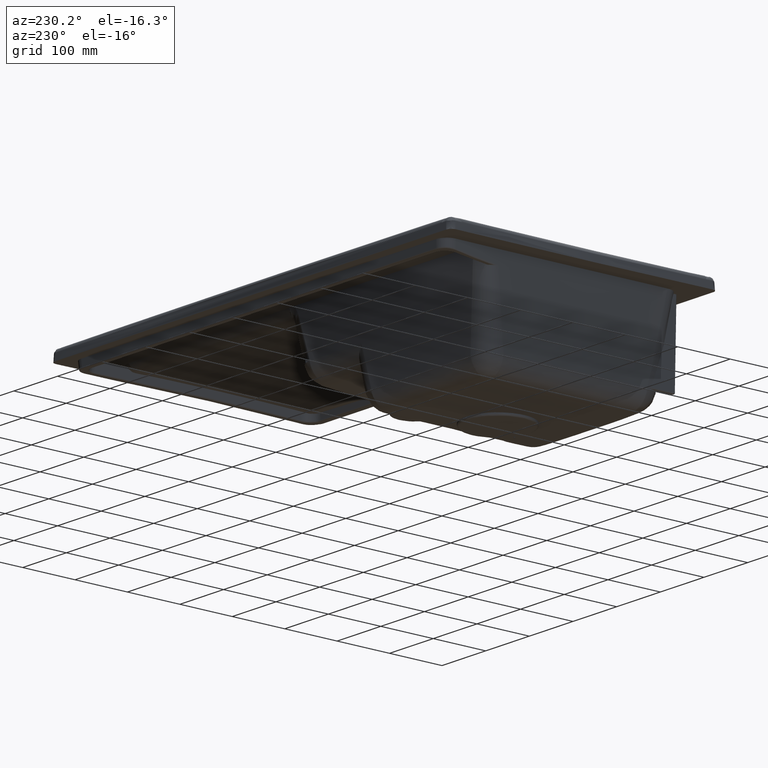
[diagram: clean part render]
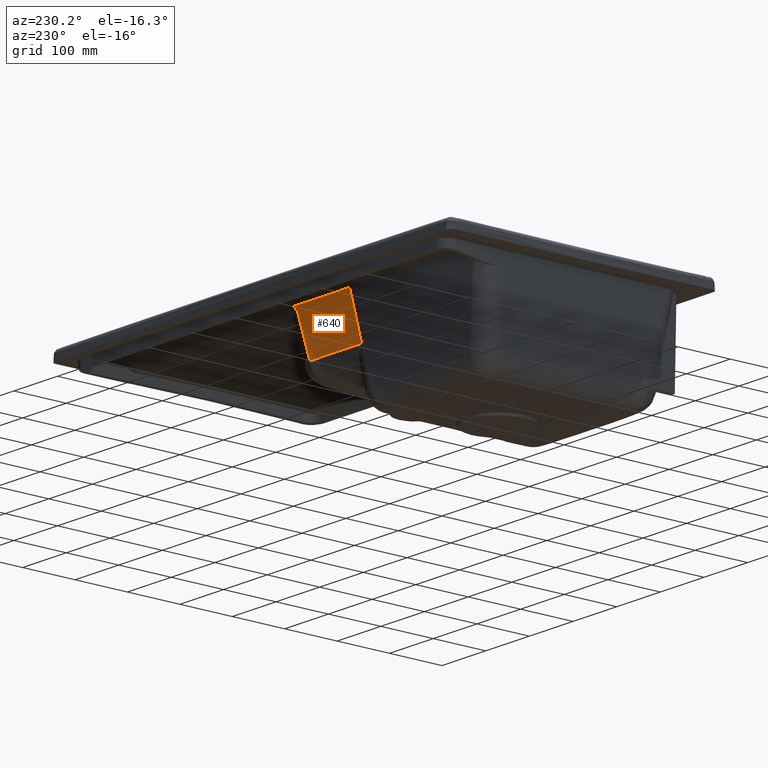
[diagram: same view with one face highlighted and labeled with its STEP entity id]
A machine part, auxiliary view. The second image highlights one B-rep face of the part: STEP entity #640.
In plain terms, the highlighted face is a freeform B-spline surface patch.
Its self-contained STEP definition (entity closure, byte-faithful):
#640=ADVANCED_FACE('',(#1094),#826,.T.);
#826=B_SPLINE_SURFACE_WITH_KNOTS('',3,3,((#17877,#17878,#17879,#17880),
(#17881,#17882,#17883,#17884),(#17885,#17886,#17887,#17888),(#17889,#17890,
#17891,#17892)),.UNSPECIFIED.,.F.,.F.,.F.,(4,4),(4,4),(0.,1.),(0.,1.),
 .UNSPECIFIED.);
#1094=FACE_OUTER_BOUND('',#1419,.T.);
#1419=EDGE_LOOP('',(#2473,#2474,#2475,#2476,#2477));
#2473=ORIENTED_EDGE('',*,*,#4084,.F.);
#2474=ORIENTED_EDGE('',*,*,#4045,.F.);
#2475=ORIENTED_EDGE('',*,*,#4087,.T.);
#2476=ORIENTED_EDGE('',*,*,#4088,.T.);
#2477=ORIENTED_EDGE('',*,*,#4089,.T.);
#3388=VERTEX_POINT('',#16092);
#3390=VERTEX_POINT('',#16109);
#3395=VERTEX_POINT('',#16238);
#3418=VERTEX_POINT('',#17747);
#3420=VERTEX_POINT('',#17872);
#4045=EDGE_CURVE('',#3390,#3388,#4671,.T.);
#4084=EDGE_CURVE('',#3388,#3418,#4700,.T.);
#4087=EDGE_CURVE('',#3390,#3395,#4703,.T.);
#4088=EDGE_CURVE('',#3395,#3420,#4704,.T.);
#4089=EDGE_CURVE('',#3420,#3418,#4705,.T.);
#4671=B_SPLINE_CURVE_WITH_KNOTS('',3,(#16110,#16111,#16112,#16113,#16114,
#16115,#16116),.UNSPECIFIED.,.F.,.F.,(4,1,1,1,4),(0.,0.191873567390972,
0.383747134781944,0.767494269563888,1.),.UNSPECIFIED.);
#4700=B_SPLINE_CURVE_WITH_KNOTS('',3,(#17743,#17744,#17745,#17746),
 .UNSPECIFIED.,.F.,.F.,(4,4),(0.,1.),.UNSPECIFIED.);
#4703=B_SPLINE_CURVE_WITH_KNOTS('',3,(#17847,#17848,#17849,#17850,#17851,
#17852,#17853,#17854,#17855,#17856,#17857,#17858,#17859,#17860,#17861,#17862,
#17863,#17864,#17865,#17866,#17867),.UNSPECIFIED.,.F.,.F.,(4,2,2,2,1,2,
2,1,1,2,2,4),(0.,0.499999999999998,0.749999999999998,0.874999999999997,
0.906249999999997,0.921874999999997,0.925781249999997,0.929687499999997,
0.937499999999997,0.953124999999998,0.968749999999999,1.),.UNSPECIFIED.);
#4704=B_SPLINE_CURVE_WITH_KNOTS('',3,(#17868,#17869,#17870,#17871),
 .UNSPECIFIED.,.F.,.F.,(4,4),(0.,1.),.UNSPECIFIED.);
#4705=B_SPLINE_CURVE_WITH_KNOTS('',3,(#17873,#17874,#17875,#17876),
 .UNSPECIFIED.,.F.,.F.,(4,4),(0.,1.),.UNSPECIFIED.);
#16092=CARTESIAN_POINT('',(-26.6335903023941,189.641217461027,-16.5261988925772));
#16109=CARTESIAN_POINT('',(-36.5232745552656,188.117007580095,-30.1179866262878));
#16110=CARTESIAN_POINT('',(-36.5232747169528,188.117015662801,-30.1179875319229));
#16111=CARTESIAN_POINT('',(-36.2755211736612,188.237888750951,-29.0424050106241));
#16112=CARTESIAN_POINT('',(-35.6160504046463,188.47536363907,-26.9287826494775));
#16113=CARTESIAN_POINT('',(-33.6755511813696,188.922685477027,-22.944937032727));
#16114=CARTESIAN_POINT('',(-30.704792864131,189.333401826715,-19.2818548383404));
#16115=CARTESIAN_POINT('',(-27.7976586317616,189.566901069842,-17.1923102636888));
#16116=CARTESIAN_POINT('',(-26.6310740979213,189.641170373342,-16.5261307772543));
#16238=CARTESIAN_POINT('',(-53.1869493427007,179.855632810564,-103.597888232199));
#17743=CARTESIAN_POINT('',(-26.6358611895065,189.641417120701,-16.526128899833));
#17744=CARTESIAN_POINT('',(-69.7065950127949,189.669695142253,-16.526174705522));
#17745=CARTESIAN_POINT('',(-112.77751060124,189.614516422056,-16.526182089403));
#17746=CARTESIAN_POINT('',(-155.848665738085,189.550337970827,-16.526064741644));
#17747=CARTESIAN_POINT('',(-155.848685272646,189.548545724588,-16.5263106875699));
#17847=CARTESIAN_POINT('',(-36.5232747048488,188.116999509505,-30.1179856446851));
#17848=CARTESIAN_POINT('',(-39.3916578608822,186.717197688272,-42.5739259326793));
#17849=CARTESIAN_POINT('',(-42.191348979148,185.350458734159,-54.7315412365568));
#17850=CARTESIAN_POINT('',(-46.4136778562656,183.288699790064,-73.0685595655962));
#17851=CARTESIAN_POINT('',(-47.8034051952227,182.610009359758,-79.1042287407683));
#17852=CARTESIAN_POINT('',(-49.9168415557302,181.577772231532,-88.283585959184));
#17853=CARTESIAN_POINT('',(-50.6190359592555,181.234789988754,-91.3335441891446));
#17854=CARTESIAN_POINT('',(-51.4997266529715,180.80460092965,-95.158927961212));
#17855=CARTESIAN_POINT('',(-51.763831543454,180.675592577898,-96.3061086311881));
#17856=CARTESIAN_POINT('',(-52.0277828772546,180.546656884411,-97.4526376102157));
#17857=CARTESIAN_POINT('',(-52.1377412667886,180.492943777734,-97.9302675056171));
#17858=CARTESIAN_POINT('',(-52.1542348811388,180.484883247583,-98.0019436820998));
#17859=CARTESIAN_POINT('',(-52.2265079373385,180.449589148983,-98.3157870454298));
#17860=CARTESIAN_POINT('',(-52.3308694000741,180.398664240238,-98.7686228996282));
#17861=CARTESIAN_POINT('',(-52.5460416575099,180.29395317987,-99.6997355748388));
#17862=CARTESIAN_POINT('',(-52.6818928021082,180.228395956384,-100.282681950598));
#17863=CARTESIAN_POINT('',(-52.8198396420327,180.162493258127,-100.868699229935));
#17864=CARTESIAN_POINT('',(-52.8557314970132,180.148384293735,-100.994154688346));
#17865=CARTESIAN_POINT('',(-52.9638429346988,180.079175514901,-101.60958983943));
#17866=CARTESIAN_POINT('',(-53.0623553090481,179.989267289362,-102.409116668046));
#17867=CARTESIAN_POINT('',(-53.1873121374904,179.855590241298,-103.597880178387));
#17868=CARTESIAN_POINT('',(-53.1873122482818,179.855590229266,-103.597880285327));
#17869=CARTESIAN_POINT('',(-92.6378032597269,179.853130303464,-103.597398199069));
#17870=CARTESIAN_POINT('',(-132.102284276742,179.825834111475,-103.592345885032));
#17871=CARTESIAN_POINT('',(-171.588693984748,179.79948602758,-103.587478744053));
#17872=CARTESIAN_POINT('',(-171.588571778078,179.799050828763,-103.587463472606));
#17873=CARTESIAN_POINT('',(-171.588740220038,179.799485492219,-103.587483254898));
#17874=CARTESIAN_POINT('',(-166.341297348253,183.044689545613,-74.5673051058879));
#17875=CARTESIAN_POINT('',(-161.094220949119,186.293933288304,-45.5471296281128));
#17876=CARTESIAN_POINT('',(-155.848742346017,189.547077362849,-16.526946390341));
#17877=CARTESIAN_POINT('',(-172.41554540821,189.634272470853,-15.5319900019784));
#17878=CARTESIAN_POINT('',(-172.431924221313,186.336263152231,-45.0588456524016));
#17879=CARTESIAN_POINT('',(-172.448302508238,183.038252690808,-74.5857011775012));
#17880=CARTESIAN_POINT('',(-172.464680274051,179.74024108122,-104.112556576661));
#17881=CARTESIAN_POINT('',(-123.18373992269,189.70516484486,-15.5380494921734));
#17882=CARTESIAN_POINT('',(-123.200344921516,186.394393587273,-45.0649069286362));
#17883=CARTESIAN_POINT('',(-123.216952732086,183.08362029681,-74.5917641316676));
#17884=CARTESIAN_POINT('',(-123.233563356473,179.772844987845,-104.118621102896));
#17885=CARTESIAN_POINT('',(-74.0246803884842,189.779893930963,-15.5444759978117));
#17886=CARTESIAN_POINT('',(-74.0285819809085,186.455664056399,-45.0713265643899));
#17887=CARTESIAN_POINT('',(-74.0324867415917,183.131434985249,-74.5981772245133));
#17888=CARTESIAN_POINT('',(-74.0363946555837,179.807206710983,-104.125027977435));
#17889=CARTESIAN_POINT('',(-24.9055978322463,189.75086030601,-15.5419991461252));
#17890=CARTESIAN_POINT('',(-24.8896980358491,186.431806548447,-45.0688532211927));
#17891=CARTESIAN_POINT('',(-24.8737961608775,183.112752564363,-74.5957072695896));
#17892=CARTESIAN_POINT('',(-24.8578922159491,179.793698355618,-104.12256129153));